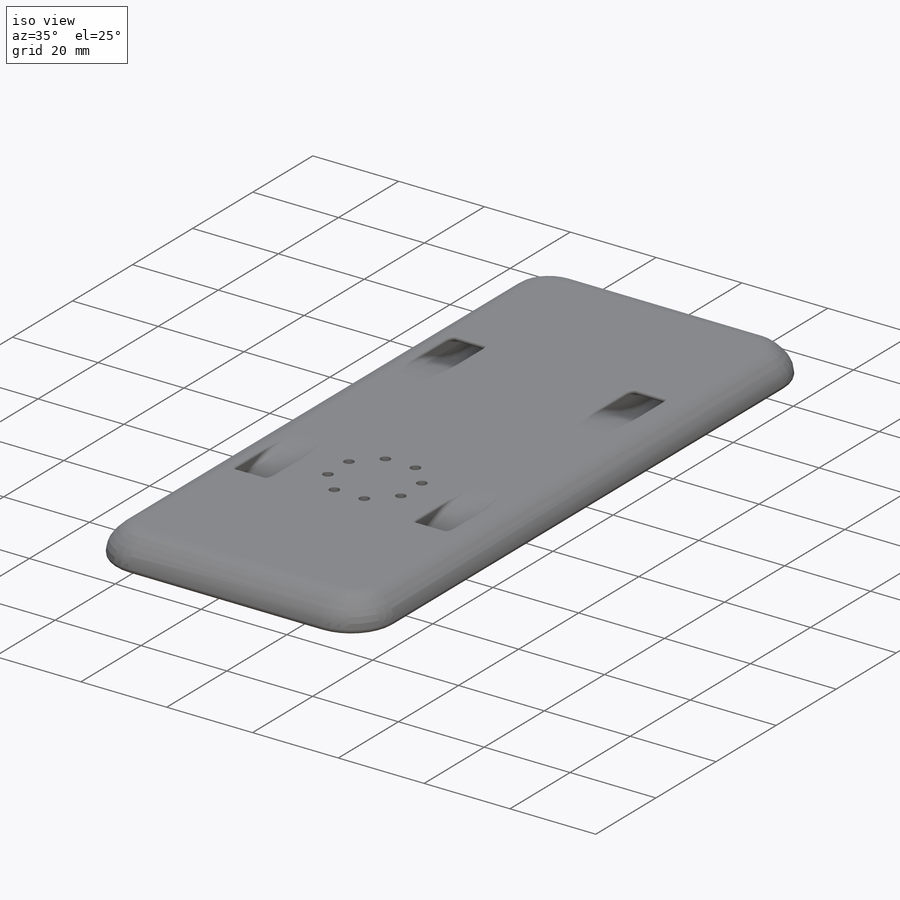
[diagram: iso view]
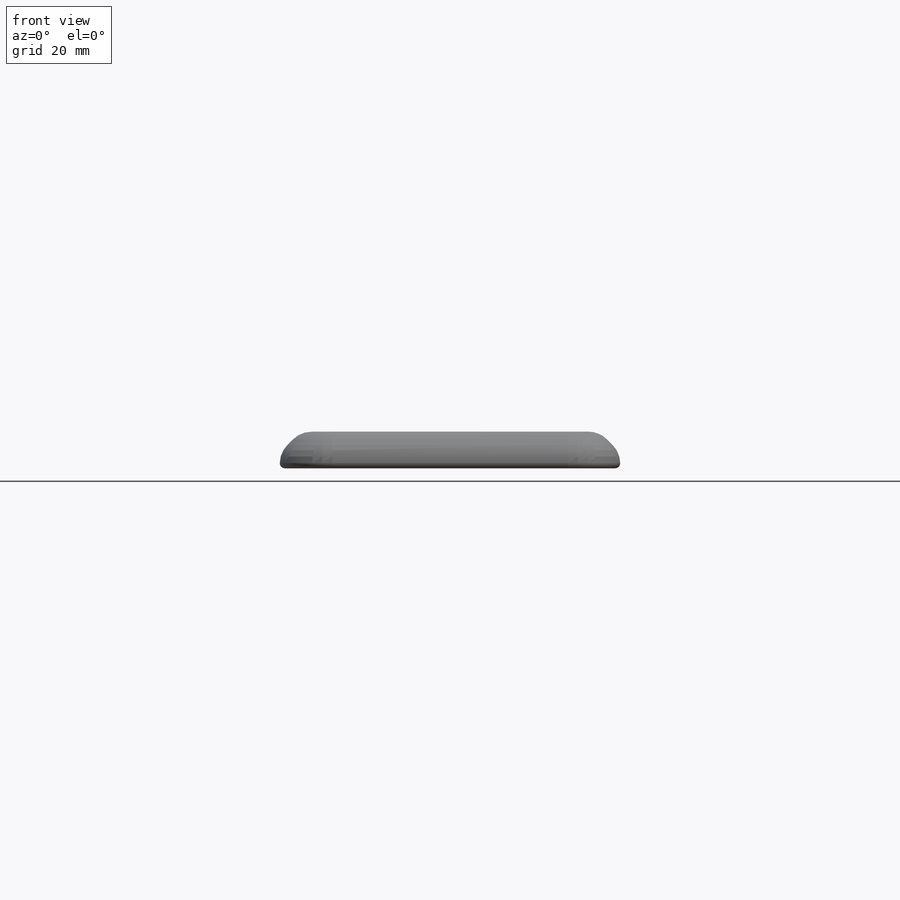
[diagram: front view]
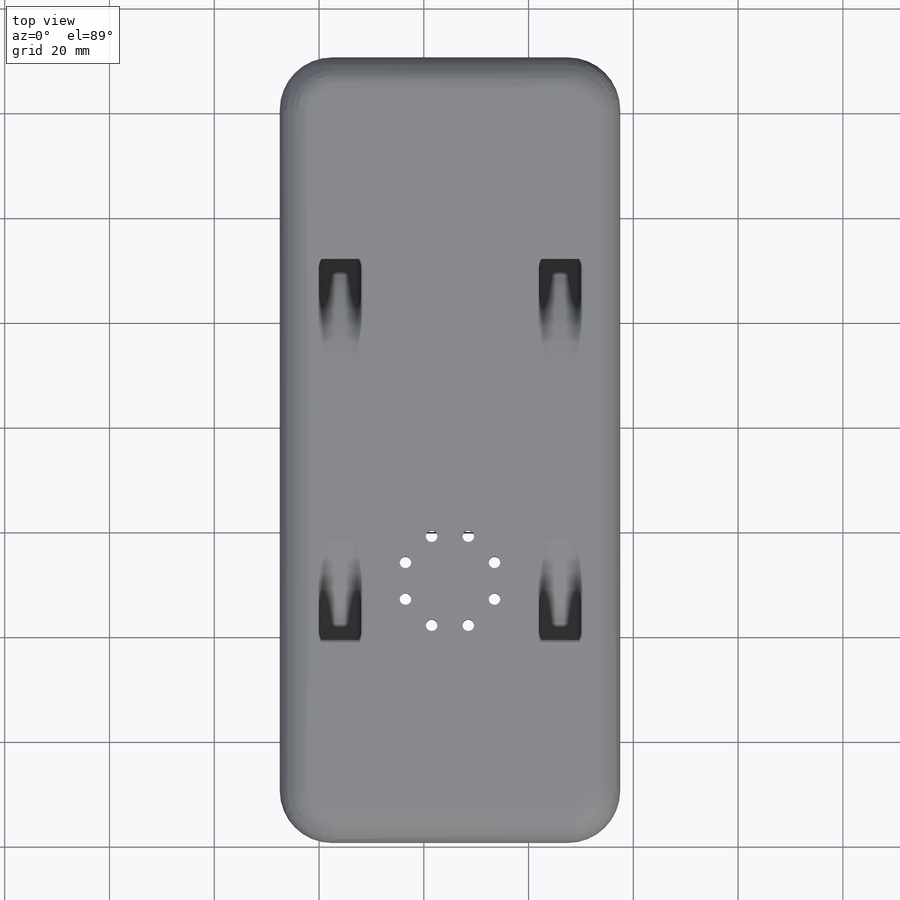
[diagram: top view]
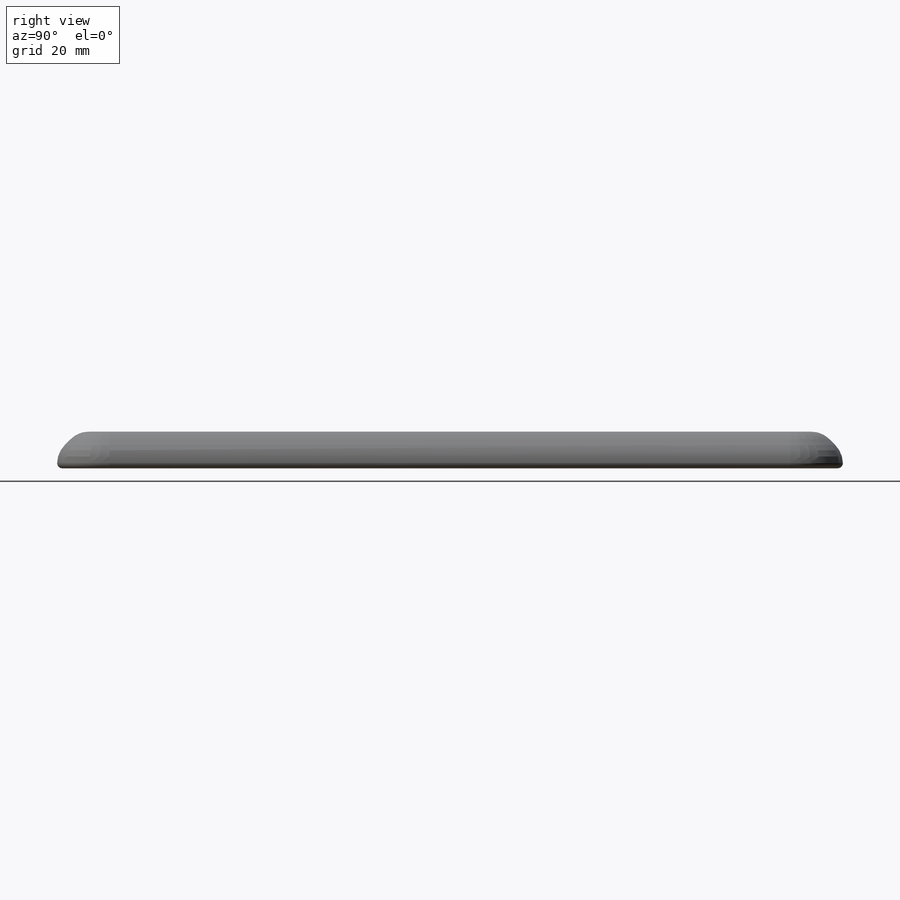
[diagram: right view]
SOLIDWORKS PART (.sldprt)
format: sldprt  version: not decoded by parser v0  size: 1,709,568 bytes
history: native  units: mm
features: sketch x26, fillet x20, plane x8, cut_extrude x6, extrude x5, surface_op x3, material x1, delete_body x1, sweep x1, hole x1, mirror x1, chamfer x1 (+11 scaffold rows collapsed; 2 parser-record rows omitted)
feature tree (87):
  scaffold x11  (default folders/planes/origin — collapsed)
  material  "Polyamide"
  plane  "Plan de face"
  plane  "Plan de dessus"
  plane  "Plan de droite"
  sketch  "Semelle"  dims[c1.D3=43.0mm c1.D1=60.0mm c1.D2=~91.970409mm c1.D4=25.0mm c1.D5=72.0mm c1.D6=6.0mm c1.D7=40.0mm c1.D8=34.0mm c1.D9=27.0mm c1.D10=6.0mm c1.D11=13.0mm c1.D12=65.0mm c1.D13=~16.568582mm c1.D14=15.0mm c2.D13=10.0mm c2.D15=6.0mm c2.D16=10.0mm c2.D17=15.0mm c2.D18=5.0mm c2.D19=80.0mm c2.D20=90.0mm c2.D21=82.0mm c2.D22=9.0mm c2.D23=70.0mm c2.D24=40.0mm c2.D25=33.0mm]
  sketch  "Chaussure"  dims[c1.D9=~22.102482mm c1.D1=8.0mm c1.D2=115.0mm c1.D3=13.0mm c1.D4=30.0mm c1.D5=42.0mm c1.D6=62.0mm c1.D7=56.0mm c1.D8=44.0mm c2.D9=4.0mm]
  sketch  "SchemaSagitall"  dims[c1.D4=22.0mm c1.D1=~51.622924mm c2.D1=20.0deg c2.D2=30.72mm c2.D3=37.12mm c2.D5=35.6mm c2.D6=12.0mm c2.D7=50.6mm]
  sketch  "SchemaArticulation"  dims[D1=~42.666667mm D2=51.2mm D3=51.2mm]
  parser-record x2  (decoder bookkeeping rows leaked as tree rows — omitted from the tree; the rows remain in map.json)
  sketch  "Esquisse2"
  extrude  "Boss.-Extru.1"  Depth=7mm
  sketch  "Esquisse4"  dims[D1=0.5mm]
  sketch  "Esquisse7"
  sketch  "Esquisse5"
  plane  "Plan2"  Offset=7mm
  sketch  "Esquisse9"
  sketch  "Esquisse12"
  extrude  "Surface-Remplir8"  [1 undecoded]
  surface_op  "Surface-Extrusion3"
  surface_op  "Surface-Restreindre6"
  surface_op  "Surface-Restreindre8"
  extrude  "Surface-Remplir9"  [1 undecoded]
  delete_body  "Corps-Effacer/suppr1"
  sketch  "Esquisse13"
  sketch  "Esquisse14"  dims[D1=1.0mm]
  sweep  "Enlèvement de matière-Balayage1"
  sketch  "Esquisse15"  dims[c1.D1=8.0mm c1.D2=17.0mm c2.D1=8.0mm c2.D3=5.0mm]
  cut_extrude  "Enlèv. mat.-Extru.1"  Depth=10mm
  plane  "Plan3"
  sketch  "Esquisse31"  dims[c1.D1=~12.405096mm c2.D1=0.0deg c2.D2=5.0mm c2.D3=28.0mm]
  plane  "Plan4"
  sketch  "Esquisse32"  dims[c1.D1=26.0mm c1.D2=22.0mm c1.D3=~20.230458mm c2.D3=0.0deg]
  extrude  "Boss.-Extru.4"  [1 undecoded]
  plane  "Plan5"  Offset=15mm
  sketch  "Esquisse34"  dims[c1.D4=2.0mm c1.D1=16.0mm c1.D2=2.0mm c2.D4=2.0mm c2.D1=7.0mm c2.D2=17.0mm c2.D3=7.0mm c2.D5=8.7727mm c3.D5=~22.380135deg c3.D3=8.0mm c4.D3=22.5deg c4.D1=17.0mm c4.D2=7.0mm c5.D3=7.0mm]
  hole  "Chambrage pour vis à tête hexagonale M23"  Diameter=2.2mm Depth=17.385251mm
  sketch  "Esquisse36"
  sketch  "Esquisse37"  dims[hole-wizard template sketch: 42 standard entries collapsed; hole parameters kept: c12.Profondeur du perçage jusqu'au prochain=~17.385251mm c12.Diamètre du chambrage=3.8mm c12.Profondeur du chambrage=10.0mm c12.Diamètre du fraisage milieu=2.4mm c12.D6=~5.388154mm c12.Angle du fraisage milieu=90.0deg]
  sketch  "Esquisse38"
  sketch  "Esquisse39"  dims[D1=0.75mm]
  fillet  "Congé24"  Radius=50mm
  fillet  "Congé25"  Radius=5mm
  fillet  "Congé26"  Radius=10mm
  fillet  "Congé22"  Radius=1mm
  fillet  "Congé23"  Radius=0.2mm
  fillet  "Congé27"  Radius=8mm
  fillet  "Congé28"  Radius=0.5mm
  sketch  "Esquisse40"
  cut_extrude  "Enlèv. mat.-Extru.2"  [1 undecoded]
  fillet  "Congé32"  Radius=5mm
  fillet  "Congé33"  Radius=2mm
  fillet  "Congé34"  Radius=1.8mm
  sketch  "Esquisse41"  dims[c1.D1=65.0mm c1.D2=~102.38387mm c1.D3=50.0mm c2.D2=150.0mm]
  extrude  "Boss.-Extru.5"  [1 undecoded]
  sketch  "Esquisse42"
  cut_extrude  "Enlèv. mat.-Extru.3"  Depth=7mm
  sketch  "Esquisse43"  dims[D1=19.0mm D2=2.0mm D3=2.0mm D4=2.0mm]
  cut_extrude  "Enlèv. mat.-Extru.4"  Depth=3mm
  sketch  "Esquisse44"  dims[D1=8.0mm D2=30.0mm]
  cut_extrude  "Enlèv. mat.-Extru.5"  Depth=1.5mm
  sketch  "Esquisse45"  dims[D1=10.0mm]
  cut_extrude  "Enlèv. mat.-Extru.6"  [1 undecoded]
  fillet  "Congé37"  Radius=30mm
  fillet  "Congé38"  Radius=30mm
  fillet  "Congé40"  Radius=5mm
  fillet  "Congé41"  Radius=1mm
  plane  "Plan6"
  fillet  "Congé45"  Radius=1mm
  fillet  "Congé48"  Radius=0.5mm
  fillet  "Congé49"  Radius=0.5mm
  mirror  "Symétrie1"
  fillet  "Congé35"  Radius=10mm
  fillet  "Congé36"  [1 undecoded]
  chamfer  "Chanfrein1"  Distance=4mm Angle=45deg
  fillet  "Congé47"  Radius=5mm
decode coverage: 42 of 65 modeling features carry decoded parameters
note: ~ marks probable driven/reference dimensions
note: 7 parameter values undecoded
summary: no parameter record found for 7 features
note: suppression state not decoded; provenance and decode notes live in map.json
